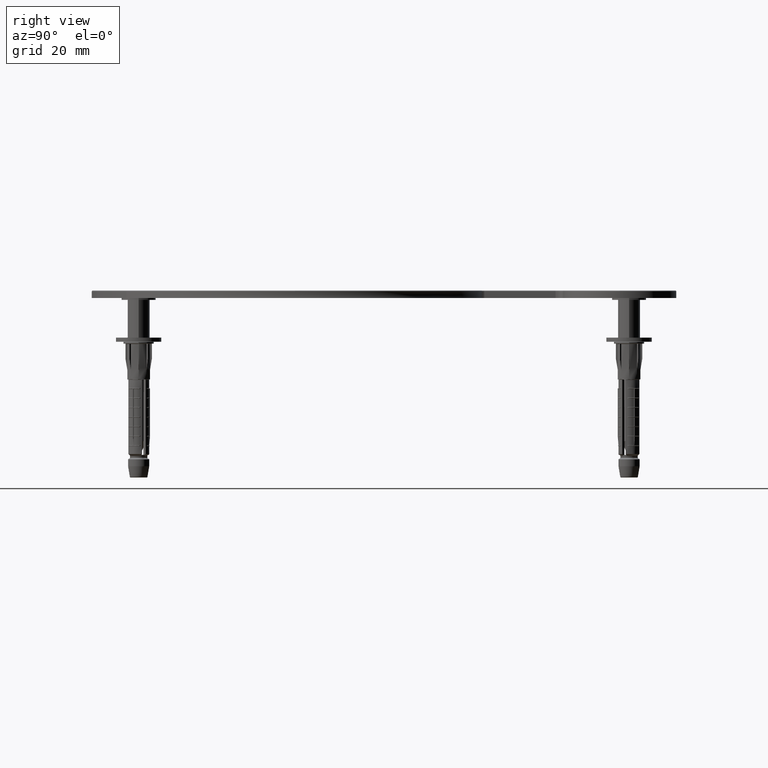
[diagram: clean part render]
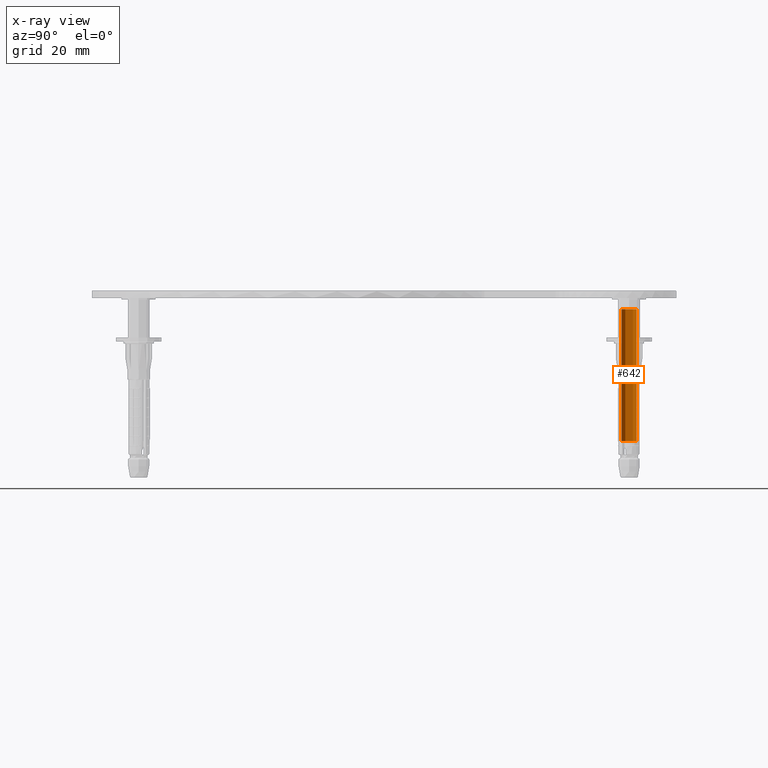
[diagram: x-ray — body ghosted, one internal face saturated and labeled with its STEP entity id]
A machine part, right view, then the same camera in x-ray: the body is ghosted and one INTERNAL B-rep face — a face not visible from any outside direction — is saturated and labeled: STEP entity #642.
In plain terms, the highlighted cylindrical surface (edge-blend (fillet) strip) has radius 2 mm, axis along (0, 0, -1).
Its self-contained STEP definition (entity closure, byte-faithful):
#642 = ADVANCED_FACE ( 'NONE', ( #1326 ), #29472, .T. ) ;
#1326 = FACE_OUTER_BOUND ( 'NONE', #30248, .T. ) ;
#1374 = CARTESIAN_POINT ( 'NONE',  ( 2.449293598294719726E-16, -1.999999999999995781, -0.5000000000000073275 ) ) ;
#3146 = ORIENTED_EDGE ( 'NONE', *, *, #8476, .T. ) ;
#4083 = ORIENTED_EDGE ( 'NONE', *, *, #31330, .T. ) ;
#4122 = DIRECTION ( 'NONE',  ( -1.314919014442268700E-41, -1.000000000000000000, 0.000000000000000000 ) ) ;
#7909 = CARTESIAN_POINT ( 'NONE',  ( 2.449293598294702963E-16, -1.999999999999981792, -35.40999999999990422 ) ) ;
#8476 = EDGE_CURVE ( 'NONE', #15996, #14198, #22343, .T. ) ;
#8707 = EDGE_CURVE ( 'NONE', #37268, #14198, #32386, .T. ) ;
#9955 = DIRECTION ( 'NONE',  ( 1.314919014442269209E-41, 1.000000000000000000, 0.000000000000000000 ) ) ;
#13523 = AXIS2_PLACEMENT_3D ( 'NONE', #18913, #37522, #9955 ) ;
#14198 = VERTEX_POINT ( 'NONE', #7909 ) ;
#14797 = DIRECTION ( 'NONE',  ( -2.548694494986879549E-32, -1.530808498934207841E-17, -1.000000000000000000 ) ) ;
#15996 = VERTEX_POINT ( 'NONE', #1374 ) ;
#16140 = CARTESIAN_POINT ( 'NONE',  ( 0.000000000000000000, 0.000000000000000000, -0.5000000000000073275 ) ) ;
#16285 = CARTESIAN_POINT ( 'NONE',  ( 5.618597014461522366E-31, 1.999999999999995781, -0.5000000000000073275 ) ) ;
#16698 = AXIS2_PLACEMENT_3D ( 'NONE', #38663, #23974, #27188 ) ;
#17607 = ORIENTED_EDGE ( 'NONE', *, *, #8707, .F. ) ;
#18011 = CARTESIAN_POINT ( 'NONE',  ( 2.449293598294697047E-16, -1.999999999999981792, -39.99999999999988631 ) ) ;
#18913 = CARTESIAN_POINT ( 'NONE',  ( 0.000000000000000000, 1.387778780781445676E-14, -35.40999999999990422 ) ) ;
#19562 = LINE ( 'NONE', #23631, #32417 ) ;
#20949 = VECTOR ( 'NONE', #14797, 1000.000000000000000 ) ;
#21118 = DIRECTION ( 'NONE',  ( -2.548694494986879549E-32, -1.530808498934207841E-17, -1.000000000000000000 ) ) ;
#22343 = LINE ( 'NONE', #18011, #20949 ) ;
#23631 = CARTESIAN_POINT ( 'NONE',  ( 2.629838028884532811E-41, 2.000000000000009770, -39.99999999999988631 ) ) ;
#23974 = DIRECTION ( 'NONE',  ( -2.548694494986879549E-32, -1.530808498934207841E-17, -1.000000000000000000 ) ) ;
#24160 = ORIENTED_EDGE ( 'NONE', *, *, #25203, .F. ) ;
#25203 = EDGE_CURVE ( 'NONE', #30007, #37268, #19562, .T. ) ;
#27188 = DIRECTION ( 'NONE',  ( 1.314919014442269209E-41, 1.000000000000000000, 0.000000000000000000 ) ) ;
#28538 = CIRCLE ( 'NONE', #36118, 1.999999999999995781 ) ;
#29434 = CARTESIAN_POINT ( 'NONE',  ( 2.629838028884532811E-41, 2.000000000000009770, -35.40999999999990422 ) ) ;
#29472 = CYLINDRICAL_SURFACE ( 'NONE', #16698, 1.999999999999995781 ) ;
#30007 = VERTEX_POINT ( 'NONE', #16285 ) ;
#30248 = EDGE_LOOP ( 'NONE', ( #4083, #3146, #17607, #24160 ) ) ;
#31330 = EDGE_CURVE ( 'NONE', #30007, #15996, #28538, .T. ) ;
#31452 = DIRECTION ( 'NONE',  ( -2.548694494986879549E-32, -1.530808498934202910E-17, -1.000000000000000000 ) ) ;
#32386 = CIRCLE ( 'NONE', #13523, 1.999999999999995781 ) ;
#32417 = VECTOR ( 'NONE', #21118, 1000.000000000000000 ) ;
#36118 = AXIS2_PLACEMENT_3D ( 'NONE', #16140, #31452, #4122 ) ;
#37268 = VERTEX_POINT ( 'NONE', #29434 ) ;
#37522 = DIRECTION ( 'NONE',  ( -2.548694494986879549E-32, -1.530808498934207841E-17, -1.000000000000000000 ) ) ;
#38663 = CARTESIAN_POINT ( 'NONE',  ( 0.000000000000000000, 1.387778780781445676E-14, -39.99999999999988631 ) ) ;